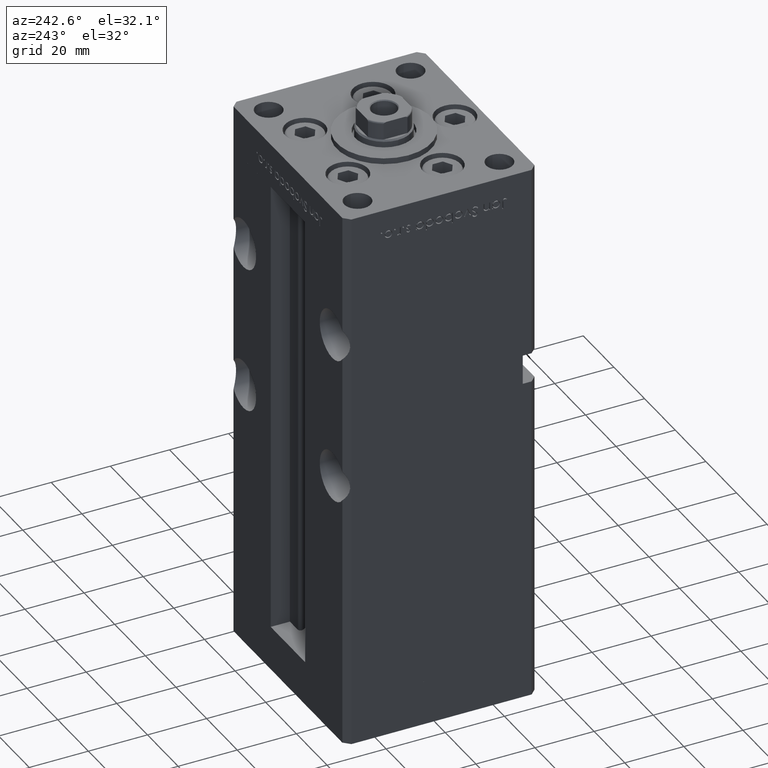
[diagram: clean part render]
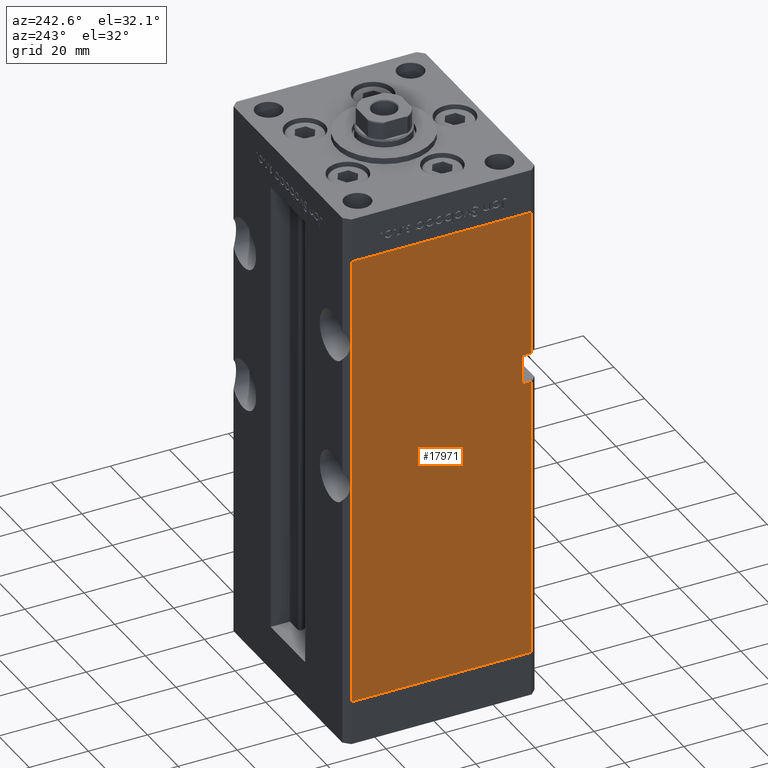
[diagram: same view with one face highlighted and labeled with its STEP entity id]
A machine part, auxiliary view. The second image highlights one B-rep face of the part: STEP entity #17971.
In plain terms, the highlighted planar face has unit normal (1, 0, 0).
Its self-contained STEP definition (entity closure, byte-faithful):
#835 = VERTEX_POINT ( 'NONE', #7186 ) ;
#1336 = CARTESIAN_POINT ( 'NONE',  ( -37.50000000000001421, 30.50000000000001066, 156.0000000000000000 ) ) ;
#1744 = EDGE_LOOP ( 'NONE', ( #38968, #2172, #31701, #2692, #8752, #53076, #29112, #22790 ) ) ;
#2172 = ORIENTED_EDGE ( 'NONE', *, *, #10017, .F. ) ;
#2692 = ORIENTED_EDGE ( 'NONE', *, *, #15566, .T. ) ;
#2820 = CARTESIAN_POINT ( 'NONE',  ( -37.49999999999999289, -30.50000000000000000, 96.00000000000000000 ) ) ;
#4165 = VECTOR ( 'NONE', #38339, 1000.000000000000000 ) ;
#4732 = LINE ( 'NONE', #21146, #34909 ) ;
#4894 = VECTOR ( 'NONE', #52817, 1000.000000000000000 ) ;
#5544 = LINE ( 'NONE', #41599, #4165 ) ;
#6072 = LINE ( 'NONE', #22496, #47887 ) ;
#7042 = VECTOR ( 'NONE', #37747, 1000.000000000000000 ) ;
#7186 = CARTESIAN_POINT ( 'NONE',  ( -37.49999999999999289, -30.50000000000000000, 106.0000000000000000 ) ) ;
#8752 = ORIENTED_EDGE ( 'NONE', *, *, #51137, .F. ) ;
#10017 = EDGE_CURVE ( 'NONE', #33083, #48057, #23639, .T. ) ;
#10324 = VERTEX_POINT ( 'NONE', #48565 ) ;
#10963 = LINE ( 'NONE', #11489, #16980 ) ;
#11470 = VECTOR ( 'NONE', #50986, 1000.000000000000000 ) ;
#11489 = CARTESIAN_POINT ( 'NONE',  ( -37.49999999999999289, -30.50000000000000000, 156.0000000000000000 ) ) ;
#12365 = DIRECTION ( 'NONE',  ( -3.412570772413390480E-16, 1.000000000000000000, 0.000000000000000000 ) ) ;
#13171 = EDGE_CURVE ( 'NONE', #33074, #33083, #49874, .T. ) ;
#15566 = EDGE_CURVE ( 'NONE', #33074, #835, #33777, .T. ) ;
#16980 = VECTOR ( 'NONE', #27380, 1000.000000000000000 ) ;
#17106 = VERTEX_POINT ( 'NONE', #1336 ) ;
#17844 = CARTESIAN_POINT ( 'NONE',  ( -37.49999999999999289, -27.50000000000000000, 106.0000000000000000 ) ) ;
#17971 = ADVANCED_FACE ( 'NONE', ( #34117 ), #33858, .F. ) ;
#20269 = VERTEX_POINT ( 'NONE', #31369 ) ;
#20387 = CARTESIAN_POINT ( 'NONE',  ( -37.49999999999999289, -27.50000000000000000, 96.00000000000000000 ) ) ;
#21146 = CARTESIAN_POINT ( 'NONE',  ( -37.49999999999999289, -30.50000000000000000, 156.0000000000000000 ) ) ;
#22496 = CARTESIAN_POINT ( 'NONE',  ( -37.50000000000001421, 30.50000000000001066, 156.0000000000000000 ) ) ;
#22790 = ORIENTED_EDGE ( 'NONE', *, *, #37166, .T. ) ;
#23639 = LINE ( 'NONE', #20387, #31863 ) ;
#25545 = CARTESIAN_POINT ( 'NONE',  ( -37.50000000000001421, 30.50000000000001066, 156.0000000000000000 ) ) ;
#27380 = DIRECTION ( 'NONE',  ( -0.000000000000000000, -0.000000000000000000, -1.000000000000000000 ) ) ;
#27445 = EDGE_CURVE ( 'NONE', #48057, #10324, #4732, .T. ) ;
#28097 = DIRECTION ( 'NONE',  ( 3.412570772413390973E-16, -1.000000000000000000, 0.000000000000000000 ) ) ;
#28629 = CARTESIAN_POINT ( 'NONE',  ( -37.49999999999999289, -27.50000000000000000, 106.0000000000000000 ) ) ;
#29112 = ORIENTED_EDGE ( 'NONE', *, *, #49196, .T. ) ;
#29593 = AXIS2_PLACEMENT_3D ( 'NONE', #25545, #37900, #12365 ) ;
#31369 = CARTESIAN_POINT ( 'NONE',  ( -37.50000000000001421, 30.50000000000001066, 0.000000000000000000 ) ) ;
#31701 = ORIENTED_EDGE ( 'NONE', *, *, #13171, .F. ) ;
#31863 = VECTOR ( 'NONE', #32201, 1000.000000000000000 ) ;
#32201 = DIRECTION ( 'NONE',  ( -0.000000000000000000, -1.000000000000000000, -0.000000000000000000 ) ) ;
#32656 = CARTESIAN_POINT ( 'NONE',  ( -37.49999999999999289, -27.50000000000000000, 96.00000000000000000 ) ) ;
#33074 = VERTEX_POINT ( 'NONE', #28629 ) ;
#33083 = VERTEX_POINT ( 'NONE', #32656 ) ;
#33777 = LINE ( 'NONE', #44900, #11470 ) ;
#33858 = PLANE ( 'NONE',  #29593 ) ;
#34117 = FACE_OUTER_BOUND ( 'NONE', #1744, .T. ) ;
#34909 = VECTOR ( 'NONE', #37517, 1000.000000000000000 ) ;
#37166 = EDGE_CURVE ( 'NONE', #20269, #10324, #5544, .T. ) ;
#37517 = DIRECTION ( 'NONE',  ( -0.000000000000000000, -0.000000000000000000, -1.000000000000000000 ) ) ;
#37747 = DIRECTION ( 'NONE',  ( 0.000000000000000000, 0.000000000000000000, -1.000000000000000000 ) ) ;
#37900 = DIRECTION ( 'NONE',  ( 1.000000000000000000, 3.412570772413390480E-16, -0.000000000000000000 ) ) ;
#38339 = DIRECTION ( 'NONE',  ( 3.412570772413390973E-16, -1.000000000000000000, 0.000000000000000000 ) ) ;
#38968 = ORIENTED_EDGE ( 'NONE', *, *, #27445, .F. ) ;
#40427 = CARTESIAN_POINT ( 'NONE',  ( -37.50000000000001421, 30.50000000000001066, 156.0000000000000000 ) ) ;
#41366 = VERTEX_POINT ( 'NONE', #42968 ) ;
#41599 = CARTESIAN_POINT ( 'NONE',  ( -37.50000000000001421, 30.50000000000001066, 0.000000000000000000 ) ) ;
#42968 = CARTESIAN_POINT ( 'NONE',  ( -37.49999999999999289, -30.50000000000000000, 156.0000000000000000 ) ) ;
#44476 = LINE ( 'NONE', #40427, #4894 ) ;
#44900 = CARTESIAN_POINT ( 'NONE',  ( -37.49999999999999289, -27.50000000000000000, 106.0000000000000000 ) ) ;
#47887 = VECTOR ( 'NONE', #28097, 1000.000000000000000 ) ;
#48057 = VERTEX_POINT ( 'NONE', #2820 ) ;
#48565 = CARTESIAN_POINT ( 'NONE',  ( -37.49999999999999289, -30.50000000000000000, 0.000000000000000000 ) ) ;
#49196 = EDGE_CURVE ( 'NONE', #17106, #20269, #44476, .T. ) ;
#49874 = LINE ( 'NONE', #17844, #7042 ) ;
#50986 = DIRECTION ( 'NONE',  ( -0.000000000000000000, -1.000000000000000000, -0.000000000000000000 ) ) ;
#51137 = EDGE_CURVE ( 'NONE', #41366, #835, #10963, .T. ) ;
#51439 = EDGE_CURVE ( 'NONE', #17106, #41366, #6072, .T. ) ;
#52817 = DIRECTION ( 'NONE',  ( -0.000000000000000000, -0.000000000000000000, -1.000000000000000000 ) ) ;
#53076 = ORIENTED_EDGE ( 'NONE', *, *, #51439, .F. ) ;